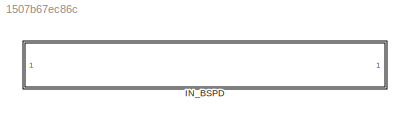
MODEL slx_1507b67ec86c
KIND library
CONFIG AbsTol = auto
CONFIG EnableMultiTasking = off
CONFIG FixedStep = auto
CONFIG MaxStep = auto
CONFIG MinStep = auto
CONFIG RelTol = 1e-3
CONFIG SampleTimeConstraint = Unconstrained
CONFIG SolverName = VariableStepAuto
CONFIG StartTime = 0.0
CONFIG StopTime = 10.0
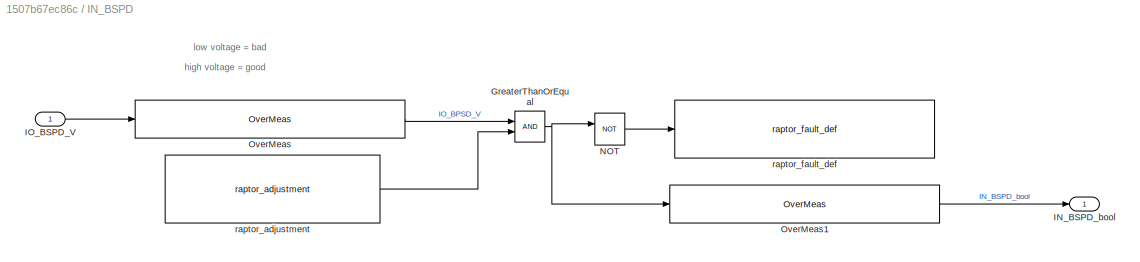
BLOCK [SubSystem] IN_BSPD
BLOCK [RelationalOperator] IN_BSPD/GreaterThanOrEqual
  InputSameDT = off
  OutDataTypeStr = boolean
  RndMeth = Simplest
BLOCK [Outport] IN_BSPD/IN_BSPD_bool
BLOCK [Inport] IN_BSPD/IO_BSPD_V
BLOCK [Logic] IN_BSPD/NOT
  AllPortsSameDT = off
  Operator = NOT
  OutDataTypeStr = boolean
BLOCK [Reference] IN_BSPD/OverMeas  REF=Utilities/OverMeas
  SourceBlock = Utilities/OverMeas
BLOCK [Reference] IN_BSPD/OverMeas1  REF=Utilities/OverMeas
  SourceBlock = Utilities/OverMeas
BLOCK [Reference] IN_BSPD/raptor_adjustment  REF=Raptor_lib/Data Storage/raptor_adjustment
  SourceBlock = Raptor_lib/Data Storage/raptor_adjustment
  SourceProductName = Raptor
  SourceType = Adjustment
BLOCK [Reference] IN_BSPD/raptor_fault_def  REF=Raptor_lib/Faults/raptor_fault_def
  SourceBlock = Raptor_lib/Faults/raptor_fault_def
  SourceProductName = Raptor
  SourceType = Fault Definition
ANNOTATION IN_BSPD: high voltage = good
ANNOTATION IN_BSPD: low voltage = bad
NET IN_BSPD/GreaterThanOrEqual:1 -> IN_BSPD/NOT:1, IN_BSPD/OverMeas1:1
LINE IN_BSPD/IO_BSPD_V:1 -> IN_BSPD/OverMeas:1
LINE IN_BSPD/NOT:1 -> IN_BSPD/raptor_fault_def:1
LINE IN_BSPD/OverMeas1:1 -> IN_BSPD/IN_BSPD_bool:1
LINE IN_BSPD/OverMeas:1 -> IN_BSPD/GreaterThanOrEqual:1
LINE IN_BSPD/raptor_adjustment:1 -> IN_BSPD/GreaterThanOrEqual:2
note: NET lines group one-source signal fan-out (src -> all destinations, sorted); 1:1 wires keep LINE
